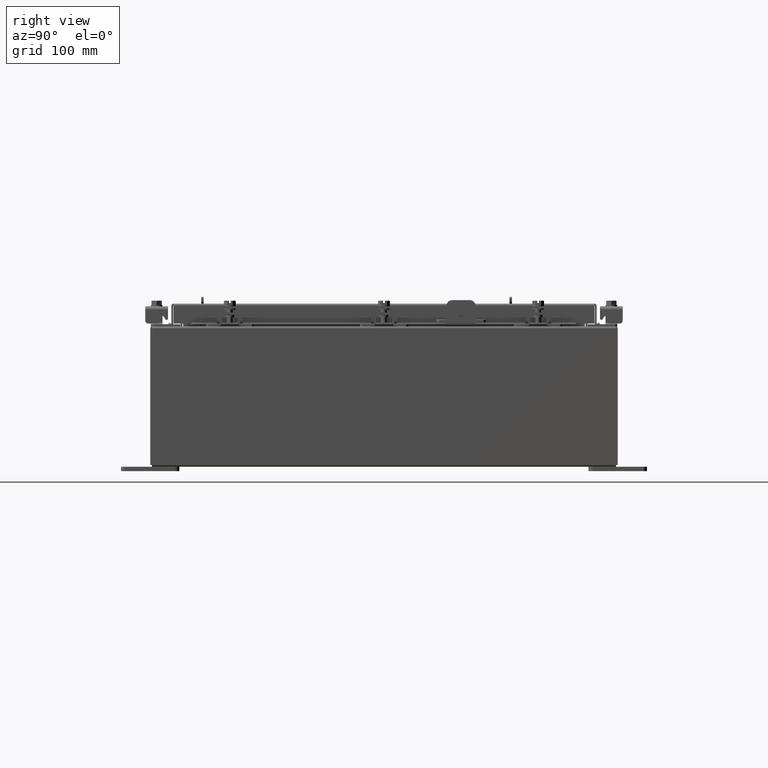
[diagram: clean part render]
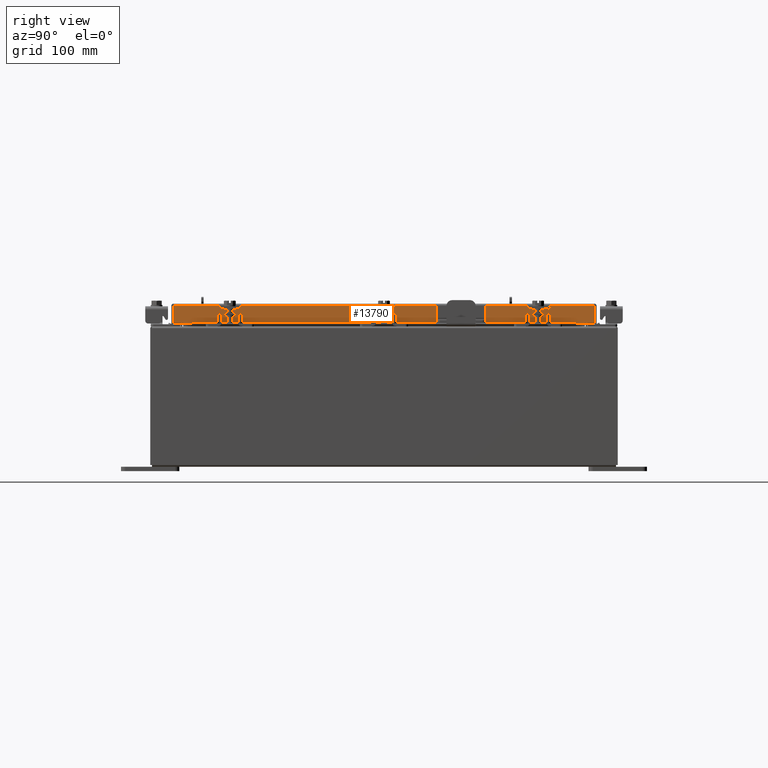
[diagram: same view with one face highlighted and labeled with its STEP entity id]
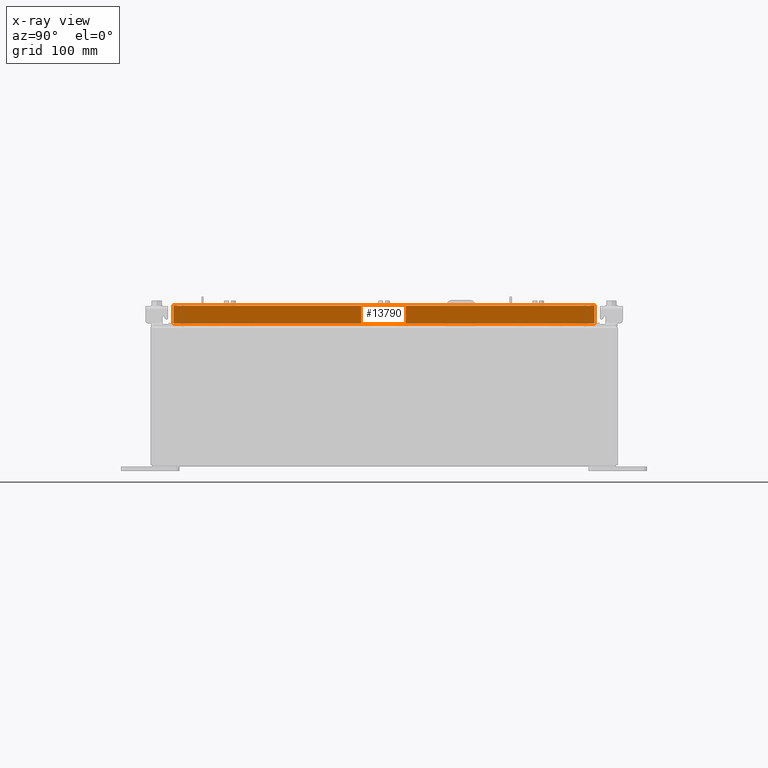
[diagram: x-ray of the same camera — body ghosted, the highlighted face saturated]
A machine part, right view. The second image highlights one B-rep face of the part: STEP entity #13790.
The next image is the same camera in x-ray: the body ghosted, the highlighted face saturated — about 0% of this face is hidden behind the body in this view.
In plain terms, the highlighted planar face has unit normal (1, 0, 0).
Its self-contained STEP definition (entity closure, byte-faithful):
#1090 = CARTESIAN_POINT ( 'NONE',  ( 9.094000000000003000, -9.094000000000003000, -0.8499999999999999800 ) ) ;
#1514 = CARTESIAN_POINT ( 'NONE',  ( 9.094000000000001200, 9.005157864376267100, 8.851187499472213200E-014 ) ) ;
#2152 = LINE ( 'NONE', #14816, #10888 ) ;
#2205 = VECTOR ( 'NONE', #5689, 39.37007874015748100 ) ;
#2602 = DIRECTION ( 'NONE',  ( -1.693590113897317100E-031, -1.000000000000000000, 6.008022858289562200E-017 ) ) ;
#2751 = EDGE_CURVE ( 'NONE', #14740, #19450, #7932, .T. ) ;
#2769 = VECTOR ( 'NONE', #6197, 39.37007874015748100 ) ;
#3389 = VERTEX_POINT ( 'NONE', #21522 ) ;
#3428 = DIRECTION ( 'NONE',  ( -2.818880942772360100E-015, -6.982962677686267500E-015, 1.000000000000000000 ) ) ;
#3513 = ORIENTED_EDGE ( 'NONE', *, *, #2751, .T. ) ;
#5101 = PLANE ( 'NONE',  #15483 ) ;
#5689 = DIRECTION ( 'NONE',  ( 0.0000000000000000000, -1.000000000000000000, 0.0000000000000000000 ) ) ;
#6061 = CARTESIAN_POINT ( 'NONE',  ( 9.094000000000001200, 9.005157864376268900, -0.08769999999999918100 ) ) ;
#6197 = DIRECTION ( 'NONE',  ( 0.0000000000000000000, -1.000000000000000000, 0.0000000000000000000 ) ) ;
#6455 = VERTEX_POINT ( 'NONE', #12640 ) ;
#6748 = DIRECTION ( 'NONE',  ( -2.818880942772360100E-015, -6.982962677686267500E-015, 1.000000000000000000 ) ) ;
#6848 = LINE ( 'NONE', #14386, #2205 ) ;
#6874 = DIRECTION ( 'NONE',  ( 1.000000000000000000, 0.0000000000000000000, 2.818880942772360100E-015 ) ) ;
#6884 = EDGE_CURVE ( 'NONE', #3389, #21385, #15025, .T. ) ;
#7932 = LINE ( 'NONE', #1514, #12046 ) ;
#8087 = VERTEX_POINT ( 'NONE', #20699 ) ;
#9081 = EDGE_CURVE ( 'NONE', #8087, #3389, #16694, .T. ) ;
#9089 = CARTESIAN_POINT ( 'NONE',  ( 9.094000000000001200, -9.005157864376267100, -0.08769999999999918100 ) ) ;
#9411 = ORIENTED_EDGE ( 'NONE', *, *, #9081, .F. ) ;
#10888 = VECTOR ( 'NONE', #2602, 39.37007874015748100 ) ;
#11135 = CARTESIAN_POINT ( 'NONE',  ( 9.094000000000003000, 9.005157864376274200, -0.8499999999999999800 ) ) ;
#12005 = EDGE_CURVE ( 'NONE', #6455, #8087, #6848, .T. ) ;
#12046 = VECTOR ( 'NONE', #6748, 39.37007874015748100 ) ;
#12222 = FACE_OUTER_BOUND ( 'NONE', #19953, .T. ) ;
#12436 = LINE ( 'NONE', #1090, #16001 ) ;
#12640 = CARTESIAN_POINT ( 'NONE',  ( 9.094000000000001200, 8.255157864376267100, -0.8500000000000010900 ) ) ;
#12647 = ORIENTED_EDGE ( 'NONE', *, *, #22433, .F. ) ;
#13063 = EDGE_CURVE ( 'NONE', #19450, #21385, #2152, .T. ) ;
#13790 = ADVANCED_FACE ( 'NONE', ( #12222 ), #5101, .T. ) ;
#14386 = CARTESIAN_POINT ( 'NONE',  ( 9.094000000000001200, 8.255157864376267100, -0.8500000000000010900 ) ) ;
#14740 = VERTEX_POINT ( 'NONE', #11135 ) ;
#14816 = CARTESIAN_POINT ( 'NONE',  ( 9.094000000000001200, -5.269035934039632300E-018, -0.08769999999999918100 ) ) ;
#15025 = LINE ( 'NONE', #15684, #19106 ) ;
#15483 = AXIS2_PLACEMENT_3D ( 'NONE', #15579, #6874, #19050 ) ;
#15490 = ORIENTED_EDGE ( 'NONE', *, *, #6884, .F. ) ;
#15579 = CARTESIAN_POINT ( 'NONE',  ( 9.094000000000001200, 0.0000000000000000000, 2.622574073917692700E-014 ) ) ;
#15684 = CARTESIAN_POINT ( 'NONE',  ( 9.094000000000001200, -9.005157864376267100, -0.07470000000000015500 ) ) ;
#16001 = VECTOR ( 'NONE', #18451, 39.37007874015748100 ) ;
#16650 = CARTESIAN_POINT ( 'NONE',  ( 9.094000000000003000, -9.094000000000003000, -0.8499999999999999800 ) ) ;
#16694 = LINE ( 'NONE', #16650, #2769 ) ;
#18408 = ORIENTED_EDGE ( 'NONE', *, *, #12005, .F. ) ;
#18451 = DIRECTION ( 'NONE',  ( 0.0000000000000000000, -1.000000000000000000, 0.0000000000000000000 ) ) ;
#19050 = DIRECTION ( 'NONE',  ( 2.818880942772360100E-015, 0.0000000000000000000, -1.000000000000000000 ) ) ;
#19106 = VECTOR ( 'NONE', #3428, 39.37007874015748100 ) ;
#19450 = VERTEX_POINT ( 'NONE', #6061 ) ;
#19909 = ORIENTED_EDGE ( 'NONE', *, *, #13063, .T. ) ;
#19953 = EDGE_LOOP ( 'NONE', ( #15490, #9411, #18408, #12647, #3513, #19909 ) ) ;
#20699 = CARTESIAN_POINT ( 'NONE',  ( 9.094000000000001200, -8.255157864376263500, -0.8500000000000010900 ) ) ;
#21385 = VERTEX_POINT ( 'NONE', #9089 ) ;
#21522 = CARTESIAN_POINT ( 'NONE',  ( 9.094000000000003000, -9.005157864376261800, -0.8499999999999999800 ) ) ;
#22433 = EDGE_CURVE ( 'NONE', #14740, #6455, #12436, .T. ) ;